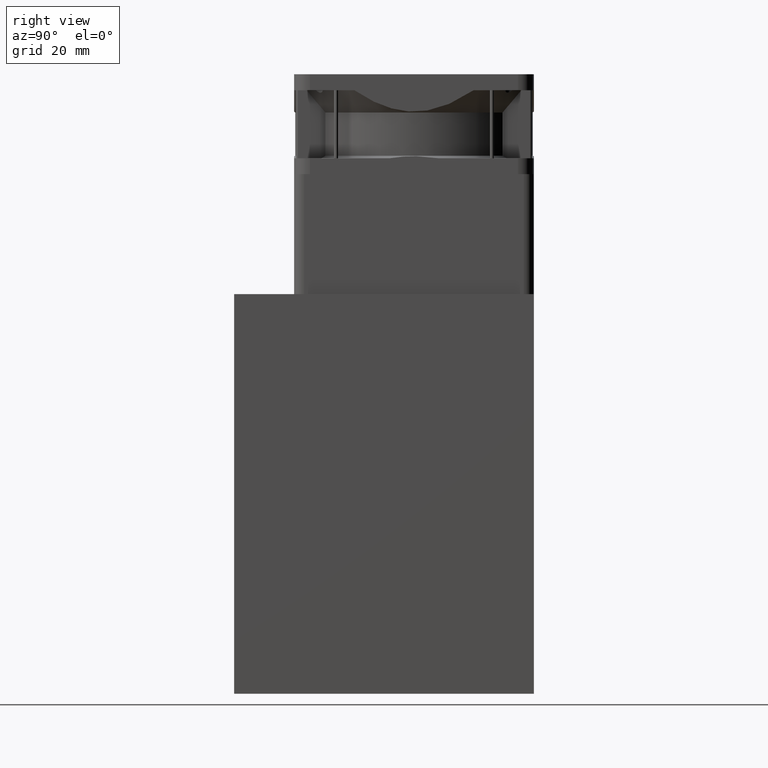
[diagram: clean part render]
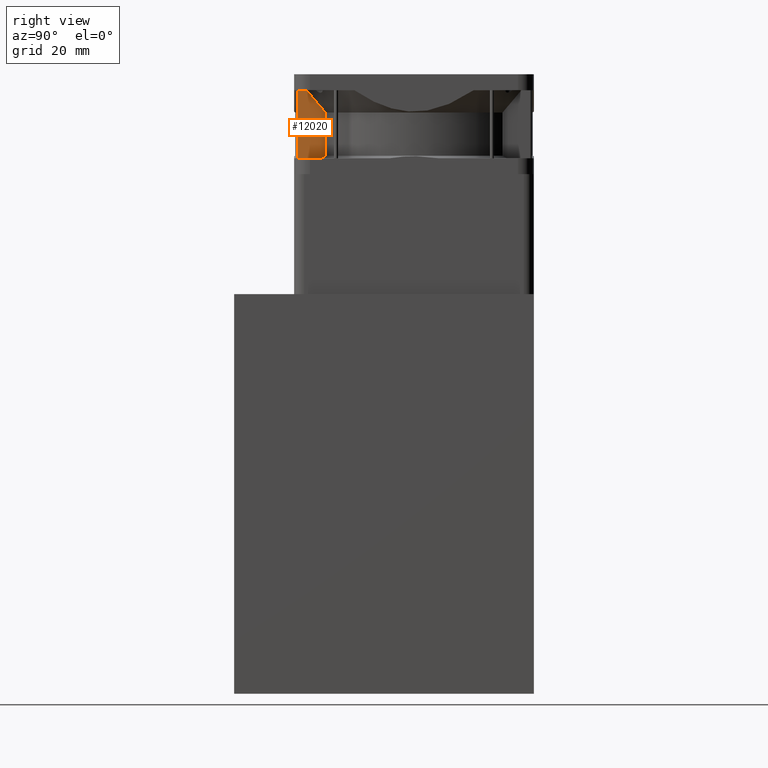
[diagram: same view with one face highlighted and labeled with its STEP entity id]
A machine part, right view. The second image highlights one B-rep face of the part: STEP entity #12020.
In plain terms, the highlighted planar face has unit normal (-1, -0, 0).
Its self-contained STEP definition (entity closure, byte-faithful):
#98 = CARTESIAN_POINT ( 'NONE',  ( 29.00000000000003908, -20.00000000000003197, 20.99999999999998934 ) ) ;
#143 = EDGE_CURVE ( 'NONE', #13284, #24630, #11701, .T. ) ;
#2189 = LINE ( 'NONE', #98, #23064 ) ;
#2198 = EDGE_CURVE ( 'NONE', #3281, #8901, #9772, .T. ) ;
#2587 = VECTOR ( 'NONE', #16390, 1000.000000000000114 ) ;
#2731 = CARTESIAN_POINT ( 'NONE',  ( 22.15902750574002411, -20.00000000000003197, 9.567796610168988636 ) ) ;
#2990 = CARTESIAN_POINT ( 'NONE',  ( 22.81238535409002566, -19.99999992471003196, 20.79262673082998703 ) ) ;
#3052 = CARTESIAN_POINT ( 'NONE',  ( 26.33971325281003573, -20.00000000000003197, 4.654696531182000996 ) ) ;
#3281 = VERTEX_POINT ( 'NONE', #9700 ) ;
#4238 = ORIENTED_EDGE ( 'NONE', *, *, #143, .F. ) ;
#6561 = CARTESIAN_POINT ( 'NONE',  ( 22.15902750574002411, -20.00000000000003197, 9.567796610168988636 ) ) ;
#6844 = PLANE ( 'NONE',  #22005 ) ;
#6982 = CARTESIAN_POINT ( 'NONE',  ( 23.13803375465002432, -20.00000000000003197, 20.99999970145999129 ) ) ;
#7684 = CARTESIAN_POINT ( 'NONE',  ( 23.02954548291002368, -20.00000000000002132, 20.93077871366999432 ) ) ;
#7839 = CARTESIAN_POINT ( 'NONE',  ( 22.15902764936002356, -19.99999943535003055, 20.38113540634001097 ) ) ;
#7904 = CARTESIAN_POINT ( 'NONE',  ( 22.67358076719002469, -20.00000000000003197, 8.985120524298007894 ) ) ;
#8049 = CARTESIAN_POINT ( 'NONE',  ( 26.87470930075004105, -20.00000000000003197, 4.000000000001002753 ) ) ;
#8901 = VERTEX_POINT ( 'NONE', #15688 ) ;
#9261 = FACE_OUTER_BOUND ( 'NONE', #30844, .T. ) ;
#9700 = CARTESIAN_POINT ( 'NONE',  ( 29.00000000000003908, -20.00000000000003197, 4.000000000000003553 ) ) ;
#9772 = LINE ( 'NONE', #21702, #11741 ) ;
#10095 = CARTESIAN_POINT ( 'NONE',  ( 23.13803375465002432, -20.00000000000003197, 20.99999970145999129 ) ) ;
#11311 = CARTESIAN_POINT ( 'NONE',  ( 26.87470930075004105, -20.00000000000003197, 4.000000000001002753 ) ) ;
#11689 = EDGE_CURVE ( 'NONE', #8901, #13387, #2189, .T. ) ;
#11701 = LINE ( 'NONE', #6561, #2587 ) ;
#11741 = VECTOR ( 'NONE', #16539, 1000.000000000000000 ) ;
#12020 = ADVANCED_FACE ( 'NONE', ( #9261 ), #6844, .F. ) ;
#12660 = CARTESIAN_POINT ( 'NONE',  ( 22.48604451332002085, -20.00000026350003068, 20.58634357364000422 ) ) ;
#13267 = ORIENTED_EDGE ( 'NONE', *, *, #21127, .F. ) ;
#13284 = VERTEX_POINT ( 'NONE', #16010 ) ;
#13387 = VERTEX_POINT ( 'NONE', #6982 ) ;
#13441 = DIRECTION ( 'NONE',  ( 1.000000000000000000, 2.204349371942997151E-57, 2.802596928649630408E-45 ) ) ;
#14992 = EDGE_CURVE ( 'NONE', #28631, #3281, #20000, .T. ) ;
#14996 = CARTESIAN_POINT ( 'NONE',  ( 26.87470930075004105, -20.00000000000003197, 4.000000000001002753 ) ) ;
#15688 = CARTESIAN_POINT ( 'NONE',  ( 29.00000000000003908, -20.00000000000003197, 20.99999999999998934 ) ) ;
#16010 = CARTESIAN_POINT ( 'NONE',  ( 22.15902750574002411, -20.00000000000003197, 9.567796610168988636 ) ) ;
#16099 = VECTOR ( 'NONE', #17564, 1000.000000000000000 ) ;
#16390 = DIRECTION ( 'NONE',  ( 1.328139031645997961E-08, 5.221755513231989893E-08, 0.9999999999999985567 ) ) ;
#16539 = DIRECTION ( 'NONE',  ( 0.000000000000000000, -6.726232628759121940E-44, 1.000000000000000000 ) ) ;
#16676 = CARTESIAN_POINT ( 'NONE',  ( 25.57951375287004225, -20.00000000000003197, 12.50000000000001066 ) ) ;
#17508 = CARTESIAN_POINT ( 'NONE',  ( 22.26810426296001921, -19.99999943535001989, 20.44942554199000284 ) ) ;
#17564 = DIRECTION ( 'NONE',  ( 1.000000000000000000, 2.290142116405999946E-13, -2.499096689070996455E-13 ) ) ;
#19170 = B_SPLINE_CURVE_WITH_KNOTS ( 'NONE', 3,
 ( #7839, #17508, #12660, #2990, #7684, #10095 ),
 .UNSPECIFIED., .F., .F.,
 ( 4, 1, 1, 4 ),
 ( 0.000000000000000000, 0.3333333333333000081, 0.6666666666667000474, 1.000000000000000000 ),
 .UNSPECIFIED. ) ;
#19294 = ORIENTED_EDGE ( 'NONE', *, *, #23244, .F. ) ;
#20000 = LINE ( 'NONE', #8049, #16099 ) ;
#20230 = ORIENTED_EDGE ( 'NONE', *, *, #14992, .T. ) ;
#21127 = EDGE_CURVE ( 'NONE', #28631, #13284, #24046, .T. ) ;
#21702 = CARTESIAN_POINT ( 'NONE',  ( 29.00000000000003908, -20.00000000000003197, 4.000000000000003553 ) ) ;
#22005 = AXIS2_PLACEMENT_3D ( 'NONE', #16676, #26527, #13441 ) ;
#23064 = VECTOR ( 'NONE', #27200, 999.9999999999998863 ) ;
#23244 = EDGE_CURVE ( 'NONE', #24630, #13387, #19170, .T. ) ;
#23629 = CARTESIAN_POINT ( 'NONE',  ( 22.15902764936002356, -19.99999943535003055, 20.38113540634001097 ) ) ;
#24046 = B_SPLINE_CURVE_WITH_KNOTS ( 'NONE', 3,
 ( #14996, #3052, #24994, #27422, #7904, #2731 ),
 .UNSPECIFIED., .F., .F.,
 ( 4, 1, 1, 4 ),
 ( 0.000000000000000000, 0.3333333333333000081, 0.6666666666667000474, 1.000000000000000000 ),
 .UNSPECIFIED. ) ;
#24112 = ORIENTED_EDGE ( 'NONE', *, *, #2198, .T. ) ;
#24630 = VERTEX_POINT ( 'NONE', #23629 ) ;
#24994 = CARTESIAN_POINT ( 'NONE',  ( 25.27762953628003828, -20.00000000000003197, 5.940471326227991788 ) ) ;
#26527 = DIRECTION ( 'NONE',  ( -2.204349371942997151E-57, 1.000000000000000000, -6.726232628759113975E-44 ) ) ;
#27200 = DIRECTION ( 'NONE',  ( -0.9999999999999987788, -2.072731277007992976E-13, -5.092802565987976936E-08 ) ) ;
#27422 = CARTESIAN_POINT ( 'NONE',  ( 23.70827636089003931, -20.00000000000003197, 7.795226476478012145 ) ) ;
#28631 = VERTEX_POINT ( 'NONE', #11311 ) ;
#30844 = EDGE_LOOP ( 'NONE', ( #31020, #19294, #4238, #13267, #20230, #24112 ) ) ;
#31020 = ORIENTED_EDGE ( 'NONE', *, *, #11689, .T. ) ;